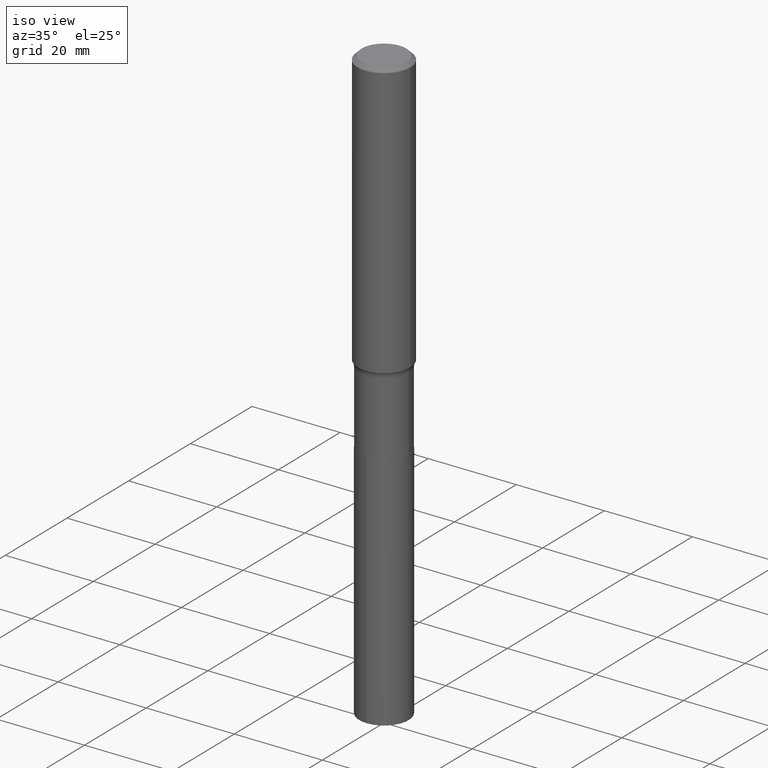
[diagram: clean part render]
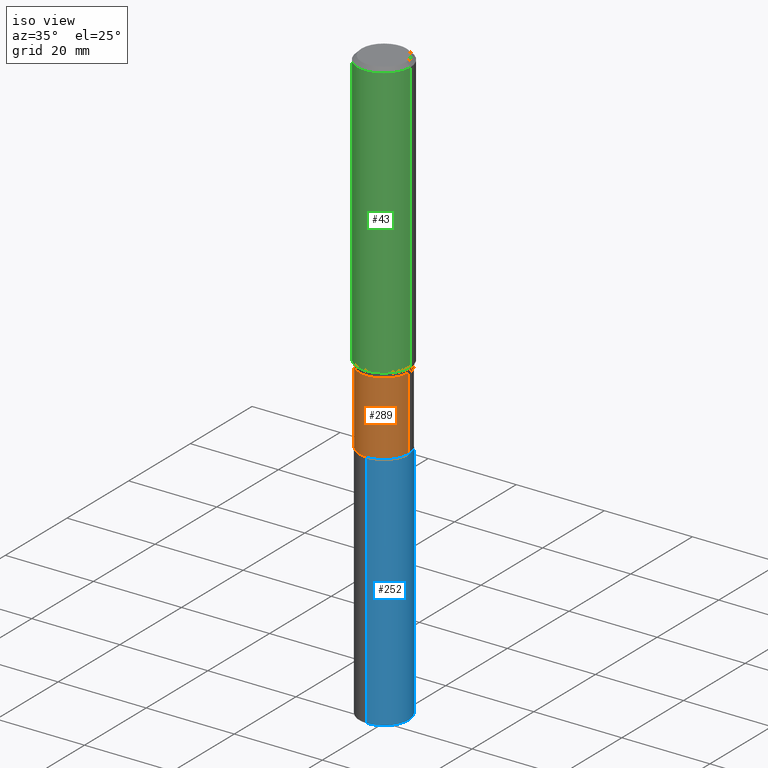
[diagram: same view with three faces highlighted in distinct colors, each labeled with its STEP entity id]
A machine part, iso view with three faces highlighted in distinct colors.
Their STEP definitions:

[orange] entity #289 — the highlighted cylindrical surface (edge-blend (fillet) strip) has radius 5.5994 mm, axis along (-0, 0, 1).
#16 = VERTEX_POINT ( 'NONE', #91 ) ;
#36 = DIRECTION ( 'NONE',  ( -2.445468806185136877E-29, 3.491481338843145188E-15, 1.000000000000000000 ) ) ;
#71 = CARTESIAN_POINT ( 'NONE',  ( 0.2204499999999999238, -1.029218869064181876E-14, -2.506900000000000350 ) ) ;
#75 = CIRCLE ( 'NONE', #133, 0.2204499999999999238 ) ;
#78 = DIRECTION ( 'NONE',  ( 1.000000000000000000, -6.982962677686265922E-15, 4.876176775795934672E-29 ) ) ;
#91 = CARTESIAN_POINT ( 'NONE',  ( -0.2204500000000000071, -8.336147912243791745E-15, -3.165500000000000203 ) ) ;
#94 = LINE ( 'NONE', #385, #255 ) ;
#120 = VERTEX_POINT ( 'NONE', #71 ) ;
#125 = AXIS2_PLACEMENT_3D ( 'NONE', #401, #217, #78 ) ;
#126 = AXIS2_PLACEMENT_3D ( 'NONE', #437, #251, #331 ) ;
#133 = AXIS2_PLACEMENT_3D ( 'NONE', #168, #326, #321 ) ;
#142 = CYLINDRICAL_SURFACE ( 'NONE', #125, 0.2204499999999999793 ) ;
#150 = FACE_OUTER_BOUND ( 'NONE', #388, .T. ) ;
#155 = VERTEX_POINT ( 'NONE', #213 ) ;
#157 = EDGE_CURVE ( 'NONE', #16, #155, #94, .T. ) ;
#168 = CARTESIAN_POINT ( 'NONE',  ( 6.130545750225519686E-29, -8.752794568345882481E-15, -2.506900000000000350 ) ) ;
#183 = ORIENTED_EDGE ( 'NONE', *, *, #342, .T. ) ;
#213 = CARTESIAN_POINT ( 'NONE',  ( -0.2204499999999999238, -8.336147912243791745E-15, -2.506900000000000350 ) ) ;
#217 = DIRECTION ( 'NONE',  ( -2.445468806185136597E-29, 3.491481338843145583E-15, 1.000000000000000000 ) ) ;
#219 = EDGE_CURVE ( 'NONE', #155, #120, #75, .T. ) ;
#223 = CARTESIAN_POINT ( 'NONE',  ( 0.2204500000000000071, -1.259167830040391635E-14, -3.165500000000000203 ) ) ;
#239 = ORIENTED_EDGE ( 'NONE', *, *, #157, .F. ) ;
#251 = DIRECTION ( 'NONE',  ( -2.445468806185136597E-29, 3.491481338843145583E-15, 1.000000000000000000 ) ) ;
#255 = VECTOR ( 'NONE', #36, 39.37007874015748143 ) ;
#259 = DIRECTION ( 'NONE',  ( -2.445468806185136877E-29, 3.491481338843145188E-15, 1.000000000000000000 ) ) ;
#272 = ORIENTED_EDGE ( 'NONE', *, *, #219, .F. ) ;
#288 = VECTOR ( 'NONE', #259, 39.37007874015748143 ) ;
#289 = ADVANCED_FACE ( 'NONE', ( #150 ), #142, .T. ) ;
#296 = CARTESIAN_POINT ( 'NONE',  ( 0.2204499999999999793, -1.539394122295937264E-15, 1.074953170224213743E-29 ) ) ;
#321 = DIRECTION ( 'NONE',  ( 1.000000000000000000, -6.982962677686265133E-15, 0.000000000000000000 ) ) ;
#326 = DIRECTION ( 'NONE',  ( -2.445468806185136597E-29, 3.491481338843145583E-15, 1.000000000000000000 ) ) ;
#331 = DIRECTION ( 'NONE',  ( 1.000000000000000000, -6.982962677686262766E-15, 0.000000000000000000 ) ) ;
#342 = EDGE_CURVE ( 'NONE', #390, #120, #364, .T. ) ;
#364 = LINE ( 'NONE', #296, #288 ) ;
#376 = ORIENTED_EDGE ( 'NONE', *, *, #383, .T. ) ;
#383 = EDGE_CURVE ( 'NONE', #16, #390, #411, .T. ) ;
#385 = CARTESIAN_POINT ( 'NONE',  ( -0.2204499999999999793, 1.566391460983140713E-15, -1.084379240646693833E-29 ) ) ;
#388 = EDGE_LOOP ( 'NONE', ( #239, #376, #183, #272 ) ) ;
#390 = VERTEX_POINT ( 'NONE', #223 ) ;
#401 = CARTESIAN_POINT ( 'NONE',  ( 0.000000000000000000, 0.000000000000000000, 0.000000000000000000 ) ) ;
#411 = CIRCLE ( 'NONE', #126, 0.2204500000000000071 ) ;
#437 = CARTESIAN_POINT ( 'NONE',  ( 7.741131505979050848E-29, -1.105228417810798007E-14, -3.165500000000000203 ) ) ;

[blue] entity #252 — the highlighted cylindrical surface (edge-blend (fillet) strip) has radius 5.5994 mm, axis along (-0, 0, 1).
#6 = CARTESIAN_POINT ( 'NONE',  ( 1.299823801295359673E-28, -1.855640517026451512E-14, -5.315000000000001279 ) ) ;
#7 = AXIS2_PLACEMENT_3D ( 'NONE', #444, #439, #179 ) ;
#8 = DIRECTION ( 'NONE',  ( -2.445734654523707896E-29, 3.491100628891162670E-15, 1.000000000000000000 ) ) ;
#10 = CYLINDRICAL_SURFACE ( 'NONE', #7, 0.2204500000000000071 ) ;
#25 = DIRECTION ( 'NONE',  ( -2.445734654523707896E-29, 3.491100628891162670E-15, 1.000000000000000000 ) ) ;
#41 = DIRECTION ( 'NONE',  ( -2.445734654523708177E-29, 3.491100628891163064E-15, 1.000000000000000000 ) ) ;
#65 = VERTEX_POINT ( 'NONE', #338 ) ;
#80 = ORIENTED_EDGE ( 'NONE', *, *, #301, .F. ) ;
#82 = VECTOR ( 'NONE', #25, 39.37007874015748143 ) ;
#107 = FACE_OUTER_BOUND ( 'NONE', #165, .T. ) ;
#109 = CARTESIAN_POINT ( 'NONE',  ( 7.742354240382144770E-29, -1.105402991877740236E-14, -3.166000000000000814 ) ) ;
#115 = EDGE_CURVE ( 'NONE', #268, #65, #398, .T. ) ;
#122 = ORIENTED_EDGE ( 'NONE', *, *, #115, .T. ) ;
#144 = CARTESIAN_POINT ( 'NONE',  ( -1.539394122295859956E-15, -0.2204500000000110538, -3.165999999999999925 ) ) ;
#165 = EDGE_LOOP ( 'NONE', ( #243, #122, #80, #394 ) ) ;
#176 = DIRECTION ( 'NONE',  ( -6.982962677686266711E-15, -1.000000000000000000, 2.478428662884339509E-15 ) ) ;
#179 = DIRECTION ( 'NONE',  ( -6.982962677686266711E-15, -1.000000000000000000, 2.478428662884339509E-15 ) ) ;
#243 = ORIENTED_EDGE ( 'NONE', *, *, #361, .T. ) ;
#247 = CIRCLE ( 'NONE', #323, 0.2204500000000000071 ) ;
#250 = CARTESIAN_POINT ( 'NONE',  ( 1.566391460983218021E-15, 0.2204499999999889326, -3.166000000000001258 ) ) ;
#252 = ADVANCED_FACE ( 'NONE', ( #107 ), #10, .T. ) ;
#256 = CARTESIAN_POINT ( 'NONE',  ( 1.566391460983244448E-15, 0.2204499999999814663, -5.315000000000003055 ) ) ;
#267 = VERTEX_POINT ( 'NONE', #402 ) ;
#268 = VERTEX_POINT ( 'NONE', #256 ) ;
#270 = CIRCLE ( 'NONE', #387, 0.2204500000000000071 ) ;
#301 = EDGE_CURVE ( 'NONE', #413, #65, #270, .T. ) ;
#305 = CARTESIAN_POINT ( 'NONE',  ( -1.539394122295859956E-15, -0.2204500000000110538, -3.165999999999999925 ) ) ;
#307 = EDGE_CURVE ( 'NONE', #267, #413, #330, .T. ) ;
#323 = AXIS2_PLACEMENT_3D ( 'NONE', #6, #442, #362 ) ;
#330 = LINE ( 'NONE', #144, #404 ) ;
#338 = CARTESIAN_POINT ( 'NONE',  ( 1.566391460983270875E-15, 0.2204499999999889326, -3.166000000000001258 ) ) ;
#361 = EDGE_CURVE ( 'NONE', #267, #268, #247, .T. ) ;
#362 = DIRECTION ( 'NONE',  ( -6.982962677686266711E-15, -1.000000000000000000, 4.956857325768679019E-15 ) ) ;
#387 = AXIS2_PLACEMENT_3D ( 'NONE', #109, #41, #176 ) ;
#394 = ORIENTED_EDGE ( 'NONE', *, *, #307, .F. ) ;
#398 = LINE ( 'NONE', #250, #82 ) ;
#402 = CARTESIAN_POINT ( 'NONE',  ( -1.539394122295807300E-15, -0.2204500000000185478, -5.315000000000000391 ) ) ;
#404 = VECTOR ( 'NONE', #8, 39.37007874015748143 ) ;
#413 = VERTEX_POINT ( 'NONE', #305 ) ;
#439 = DIRECTION ( 'NONE',  ( -2.445734654523708177E-29, 3.491100628891163064E-15, 1.000000000000000000 ) ) ;
#442 = DIRECTION ( 'NONE',  ( -2.445734654523708177E-29, 3.491100628891163064E-15, 1.000000000000000000 ) ) ;
#444 = CARTESIAN_POINT ( 'NONE',  ( 7.742354240382144770E-29, -1.105402991877740236E-14, -3.166000000000000814 ) ) ;

[green] entity #43 — the highlighted cylindrical surface (edge-blend (fillet) strip) has radius 5.9995 mm, axis along (-0, 0, 1).
#15 = FACE_OUTER_BOUND ( 'NONE', #130, .T. ) ;
#23 = AXIS2_PLACEMENT_3D ( 'NONE', #180, #113, #332 ) ;
#43 = ADVANCED_FACE ( 'NONE', ( #15 ), #345, .T. ) ;
#49 = DIRECTION ( 'NONE',  ( -2.445468806185136597E-29, 3.491481338843145583E-15, 1.000000000000000000 ) ) ;
#62 = DIRECTION ( 'NONE',  ( -2.445468806185136597E-29, 3.491481338843145583E-15, 1.000000000000000000 ) ) ;
#64 = CARTESIAN_POINT ( 'NONE',  ( 0.2362000000000003264, -1.023574943410652512E-14, -2.459235154463693007 ) ) ;
#72 = EDGE_CURVE ( 'NONE', #263, #308, #300, .T. ) ;
#74 = CARTESIAN_POINT ( 'NONE',  ( -0.2361999999999999933, -2.676736474870760158E-15, -0.03543000000000021132 ) ) ;
#105 = DIRECTION ( 'NONE',  ( 1.000000000000000000, -6.982962677686266711E-15, 0.000000000000000000 ) ) ;
#106 = CARTESIAN_POINT ( 'NONE',  ( 0.2361999999999999933, -1.773078968304709514E-15, -0.03543000000000021132 ) ) ;
#108 = EDGE_CURVE ( 'NONE', #455, #263, #357, .T. ) ;
#113 = DIRECTION ( 'NONE',  ( -2.445468806185136597E-29, 3.491481338843145583E-15, 1.000000000000000000 ) ) ;
#130 = EDGE_LOOP ( 'NONE', ( #454, #230, #233, #226 ) ) ;
#169 = EDGE_CURVE ( 'NONE', #206, #308, #434, .T. ) ;
#180 = CARTESIAN_POINT ( 'NONE',  ( 6.013982857314848036E-29, -8.586373649637023862E-15, -2.459235154463693007 ) ) ;
#188 = DIRECTION ( 'NONE',  ( 1.000000000000000000, -6.982962677686266711E-15, 4.876176775795936353E-29 ) ) ;
#202 = CARTESIAN_POINT ( 'NONE',  ( 0.2362000000000001321, -1.649375784469497117E-15, 1.151752954443000789E-29 ) ) ;
#206 = VERTEX_POINT ( 'NONE', #64 ) ;
#216 = VECTOR ( 'NONE', #283, 39.37007874015748143 ) ;
#224 = AXIS2_PLACEMENT_3D ( 'NONE', #414, #62, #105 ) ;
#226 = ORIENTED_EDGE ( 'NONE', *, *, #72, .F. ) ;
#230 = ORIENTED_EDGE ( 'NONE', *, *, #297, .T. ) ;
#233 = ORIENTED_EDGE ( 'NONE', *, *, #169, .T. ) ;
#263 = VERTEX_POINT ( 'NONE', #74 ) ;
#283 = DIRECTION ( 'NONE',  ( -2.445468806185136877E-29, 3.491481338843145188E-15, 1.000000000000000000 ) ) ;
#287 = VECTOR ( 'NONE', #348, 39.37007874015748143 ) ;
#297 = EDGE_CURVE ( 'NONE', #455, #206, #436, .T. ) ;
#300 = CIRCLE ( 'NONE', #224, 0.2361999999999999933 ) ;
#308 = VERTEX_POINT ( 'NONE', #106 ) ;
#332 = DIRECTION ( 'NONE',  ( 1.000000000000000000, -6.982962677686268288E-15, 0.000000000000000000 ) ) ;
#345 = CYLINDRICAL_SURFACE ( 'NONE', #435, 0.2362000000000001321 ) ;
#348 = DIRECTION ( 'NONE',  ( -2.445468806185136877E-29, 3.491481338843145188E-15, 1.000000000000000000 ) ) ;
#355 = CARTESIAN_POINT ( 'NONE',  ( -0.2362000000000001321, 1.678301941865357577E-15, -1.161852468318209457E-29 ) ) ;
#357 = LINE ( 'NONE', #355, #287 ) ;
#414 = CARTESIAN_POINT ( 'NONE',  ( 8.664295980313991736E-31, -1.237031838352133832E-16, -0.03543000000000021132 ) ) ;
#416 = CARTESIAN_POINT ( 'NONE',  ( -0.2362000000000003264, -6.908071707771664312E-15, -2.459235154463693007 ) ) ;
#434 = LINE ( 'NONE', #202, #216 ) ;
#435 = AXIS2_PLACEMENT_3D ( 'NONE', #457, #49, #188 ) ;
#436 = CIRCLE ( 'NONE', #23, 0.2362000000000002986 ) ;
#454 = ORIENTED_EDGE ( 'NONE', *, *, #108, .F. ) ;
#455 = VERTEX_POINT ( 'NONE', #416 ) ;
#457 = CARTESIAN_POINT ( 'NONE',  ( 0.000000000000000000, 0.000000000000000000, 0.000000000000000000 ) ) ;